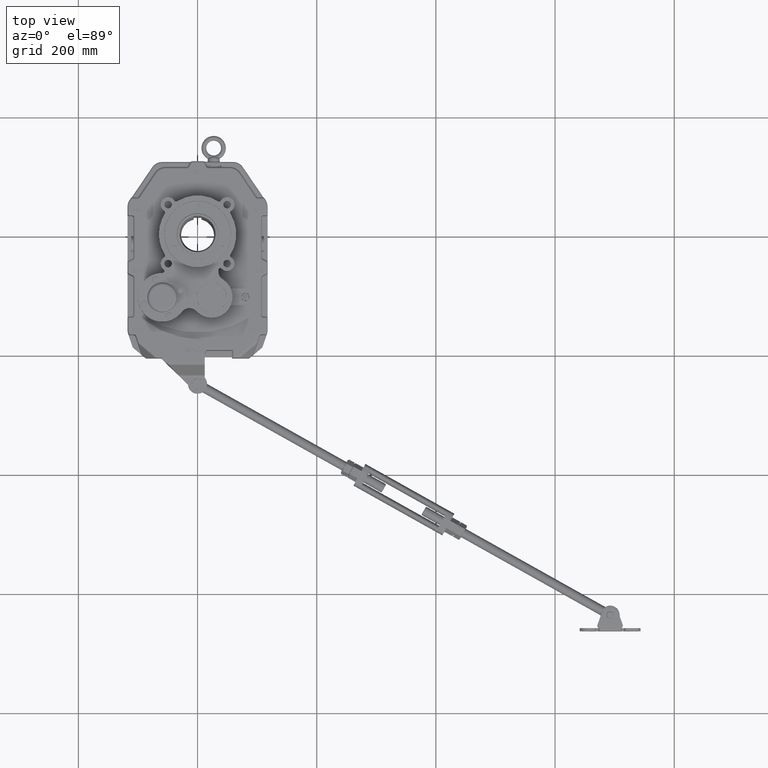
[diagram: clean part render]
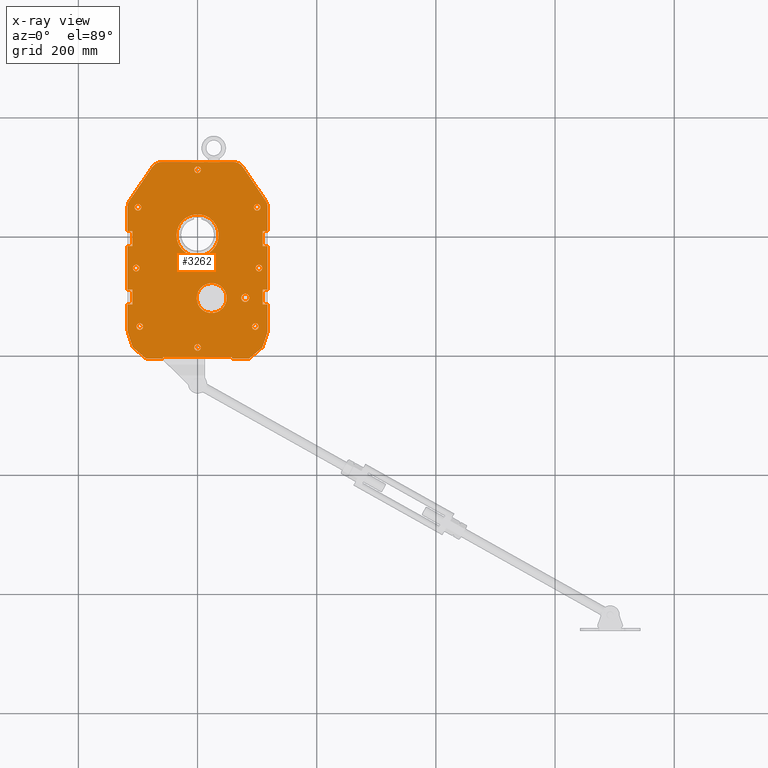
[diagram: x-ray — body ghosted, one internal face saturated and labeled with its STEP entity id]
A machine part, top view, then the same camera in x-ray: the body is ghosted and one INTERNAL B-rep face — a face not visible from any outside direction — is saturated and labeled: STEP entity #3262.
In plain terms, the highlighted planar face has unit normal (0, 0, 1).
Its self-contained STEP definition (entity closure, byte-faithful):
#85 = VERTEX_POINT ( 'NONE', #14130 ) ;
#208 = EDGE_CURVE ( 'NONE', #35110, #85, #19835, .T. ) ;
#230 = VERTEX_POINT ( 'NONE', #41484 ) ;
#306 = EDGE_CURVE ( 'NONE', #17682, #12481, #16428, .T. ) ;
#344 = EDGE_CURVE ( 'NONE', #48751, #44615, #4830, .T. ) ;
#546 = CIRCLE ( 'NONE', #24537, 0.7874015748031497600 ) ;
#599 = LINE ( 'NONE', #621, #12238 ) ;
#614 = CARTESIAN_POINT ( 'NONE',  ( 0.2165354330708662800, 4.330708661417323100, 0.0000000000000000000 ) ) ;
#621 = CARTESIAN_POINT ( 'NONE',  ( -4.625984251968502800, -8.149606299212599900, 0.0000000000000000000 ) ) ;
#667 = VECTOR ( 'NONE', #3163, 39.37007874015748100 ) ;
#693 = AXIS2_PLACEMENT_3D ( 'NONE', #13519, #44122, #17877 ) ;
#736 = ORIENTED_EDGE ( 'NONE', *, *, #344, .T. ) ;
#794 = AXIS2_PLACEMENT_3D ( 'NONE', #20289, #50951, #24674 ) ;
#924 = EDGE_CURVE ( 'NONE', #40233, #38076, #45782, .T. ) ;
#931 = DIRECTION ( 'NONE',  ( 0.0000000000000000000, 0.0000000000000000000, 1.000000000000000000 ) ) ;
#995 = CARTESIAN_POINT ( 'NONE',  ( 6.068796584498686600, -2.012991496086783600, 0.0000000000000000000 ) ) ;
#1096 = ORIENTED_EDGE ( 'NONE', *, *, #45262, .F. ) ;
#1122 = DIRECTION ( 'NONE',  ( -0.0000000000000000000, 0.0000000000000000000, -1.000000000000000000 ) ) ;
#1139 = AXIS2_PLACEMENT_3D ( 'NONE', #6200, #36727, #10562 ) ;
#1213 = EDGE_CURVE ( 'NONE', #85, #35110, #36135, .T. ) ;
#1255 = FACE_BOUND ( 'NONE', #49143, .T. ) ;
#1299 = ORIENTED_EDGE ( 'NONE', *, *, #5046, .T. ) ;
#1361 = VERTEX_POINT ( 'NONE', #53250 ) ;
#1406 = AXIS2_PLACEMENT_3D ( 'NONE', #22901, #53604, #27276 ) ;
#1446 = ORIENTED_EDGE ( 'NONE', *, *, #21809, .F. ) ;
#1514 = CARTESIAN_POINT ( 'NONE',  ( -4.625984251968502800, -8.149606299212599900, 0.0000000000000000000 ) ) ;
#1530 = CARTESIAN_POINT ( 'NONE',  ( 4.625984251968504600, -8.149606299212596400, 0.0000000000000000000 ) ) ;
#1661 = EDGE_CURVE ( 'NONE', #32779, #53252, #21619, .T. ) ;
#1713 = DIRECTION ( 'NONE',  ( 0.0000000000000000000, 1.000000000000000000, 0.0000000000000000000 ) ) ;
#1950 = ORIENTED_EDGE ( 'NONE', *, *, #49534, .T. ) ;
#2354 = ORIENTED_EDGE ( 'NONE', *, *, #208, .T. ) ;
#2535 = ORIENTED_EDGE ( 'NONE', *, *, #27992, .F. ) ;
#2628 = FACE_BOUND ( 'NONE', #31964, .T. ) ;
#2639 = CIRCLE ( 'NONE', #31631, 0.7874015748031497600 ) ;
#2767 = VERTEX_POINT ( 'NONE', #24731 ) ;
#2927 = CARTESIAN_POINT ( 'NONE',  ( 3.937007874015749000, 1.850393700787402700, 0.0000000000000000000 ) ) ;
#3037 = DIRECTION ( 'NONE',  ( 0.0000000000000000000, 0.0000000000000000000, 1.000000000000000000 ) ) ;
#3043 = LINE ( 'NONE', #3963, #22097 ) ;
#3110 = ORIENTED_EDGE ( 'NONE', *, *, #7087, .T. ) ;
#3122 = CARTESIAN_POINT ( 'NONE',  ( -4.311023622047242700, -4.566929133858268500, 0.0000000000000000000 ) ) ;
#3145 = VECTOR ( 'NONE', #41694, 39.37007874015748100 ) ;
#3163 = DIRECTION ( 'NONE',  ( 1.000000000000000000, 2.362176648138631400E-016, -0.0000000000000000000 ) ) ;
#3262 = ADVANCED_FACE ( 'NONE', ( #5383, #12893, #47770, #2628, #36119, #1255, #46370, #34734, #23042, #11523, #56665, #45015 ), #6614, .F. ) ;
#3523 = EDGE_CURVE ( 'NONE', #43847, #26045, #599, .T. ) ;
#3580 = CIRCLE ( 'NONE', #20471, 1.387795275590551400 ) ;
#3642 = EDGE_CURVE ( 'NONE', #7768, #36022, #2639, .T. ) ;
#3700 = VECTOR ( 'NONE', #21824, 39.37007874015748100 ) ;
#3909 = ORIENTED_EDGE ( 'NONE', *, *, #1213, .T. ) ;
#3963 = CARTESIAN_POINT ( 'NONE',  ( 0.0000000000000000000, -0.7086614173228356100, 0.0000000000000000000 ) ) ;
#3978 = CARTESIAN_POINT ( 'NONE',  ( 4.625984251968504600, -8.149606299212596400, 0.0000000000000000000 ) ) ;
#4270 = VERTEX_POINT ( 'NONE', #39543 ) ;
#4549 = ORIENTED_EDGE ( 'NONE', *, *, #26051, .T. ) ;
#4665 = CARTESIAN_POINT ( 'NONE',  ( -3.396456692913386400, -8.149606299212596400, 0.0000000000000000000 ) ) ;
#4754 = CARTESIAN_POINT ( 'NONE',  ( 4.625984251968502800, -0.7086614173228356100, 0.0000000000000000000 ) ) ;
#4764 = VECTOR ( 'NONE', #54716, 39.37007874015748100 ) ;
#4830 = CIRCLE ( 'NONE', #29207, 0.2165354330708663400 ) ;
#4845 = CARTESIAN_POINT ( 'NONE',  ( 2.339828238322097000, 4.055118110236220400, 0.0000000000000000000 ) ) ;
#5046 = EDGE_CURVE ( 'NONE', #7508, #50380, #5117, .T. ) ;
#5117 = LINE ( 'NONE', #46473, #33049 ) ;
#5207 = VERTEX_POINT ( 'NONE', #54405 ) ;
#5318 = CARTESIAN_POINT ( 'NONE',  ( -0.2165354330708662000, -7.409448818897637100, 0.0000000000000000000 ) ) ;
#5383 = FACE_OUTER_BOUND ( 'NONE', #51121, .T. ) ;
#5407 = DIRECTION ( 'NONE',  ( 0.3148281856745032100, 0.9491486782927637300, 0.0000000000000000000 ) ) ;
#5518 = VECTOR ( 'NONE', #10306, 39.37007874015748100 ) ;
#5731 = ORIENTED_EDGE ( 'NONE', *, *, #39816, .F. ) ;
#5794 = DIRECTION ( 'NONE',  ( -0.0000000000000000000, 0.0000000000000000000, -1.000000000000000000 ) ) ;
#5800 = VERTEX_POINT ( 'NONE', #28983 ) ;
#5806 = DIRECTION ( 'NONE',  ( 0.0000000000000000000, -0.0000000000000000000, 1.000000000000000000 ) ) ;
#5860 = EDGE_LOOP ( 'NONE', ( #48581, #28746 ) ) ;
#5883 = VECTOR ( 'NONE', #54764, 39.37007874015748100 ) ;
#6200 = CARTESIAN_POINT ( 'NONE',  ( 3.818897637795276800, -6.031496062992124200, 0.0000000000000000000 ) ) ;
#6203 = EDGE_CURVE ( 'NONE', #230, #11089, #51673, .T. ) ;
#6526 = CARTESIAN_POINT ( 'NONE',  ( 3.818897637795276800, -6.031496062992124200, 0.0000000000000000000 ) ) ;
#6556 = CIRCLE ( 'NONE', #19459, 0.2657480314960632400 ) ;
#6614 = PLANE ( 'NONE',  #51512 ) ;
#6685 = ORIENTED_EDGE ( 'NONE', *, *, #49904, .F. ) ;
#6754 = AXIS2_PLACEMENT_3D ( 'NONE', #31876, #5806, #36350 ) ;
#6854 = CARTESIAN_POINT ( 'NONE',  ( 4.625984251968504600, 4.842519685039370400, 0.0000000000000000000 ) ) ;
#7024 = VECTOR ( 'NONE', #26134, 39.37007874015748100 ) ;
#7087 = EDGE_CURVE ( 'NONE', #44615, #48751, #23392, .T. ) ;
#7324 = AXIS2_PLACEMENT_3D ( 'NONE', #51937, #25647, #56331 ) ;
#7331 = DIRECTION ( 'NONE',  ( 1.000000000000000000, 0.0000000000000000000, 0.0000000000000000000 ) ) ;
#7508 = VERTEX_POINT ( 'NONE', #44737 ) ;
#7532 = ORIENTED_EDGE ( 'NONE', *, *, #14308, .F. ) ;
#7568 = ORIENTED_EDGE ( 'NONE', *, *, #25683, .T. ) ;
#7705 = EDGE_CURVE ( 'NONE', #20401, #21387, #13213, .T. ) ;
#7737 = CARTESIAN_POINT ( 'NONE',  ( 3.720472440944882400, 1.850393700787402700, 0.0000000000000000000 ) ) ;
#7768 = VERTEX_POINT ( 'NONE', #8249 ) ;
#7789 = EDGE_CURVE ( 'NONE', #21283, #32116, #38488, .T. ) ;
#7842 = CARTESIAN_POINT ( 'NONE',  ( 0.2165354330708663400, -7.409448818897637100, 0.0000000000000000000 ) ) ;
#7998 = CARTESIAN_POINT ( 'NONE',  ( 4.625984251968504600, 1.845104029052865100, 0.0000000000000000000 ) ) ;
#8021 = DIRECTION ( 'NONE',  ( 0.0000000000000000000, 0.0000000000000000000, 1.000000000000000000 ) ) ;
#8065 = DIRECTION ( 'NONE',  ( -1.000000000000000000, 0.0000000000000000000, 0.0000000000000000000 ) ) ;
#8249 = CARTESIAN_POINT ( 'NONE',  ( -4.625984251968502800, 1.845104029052865100, 0.0000000000000000000 ) ) ;
#8297 = DIRECTION ( 'NONE',  ( 0.0000000000000000000, 0.0000000000000000000, 1.000000000000000000 ) ) ;
#8352 = DIRECTION ( 'NONE',  ( -1.000000000000000000, 0.0000000000000000000, 0.0000000000000000000 ) ) ;
#8393 = CIRCLE ( 'NONE', #30089, 0.7874015748031497600 ) ;
#8433 = DIRECTION ( 'NONE',  ( 0.0000000000000000000, -0.0000000000000000000, 1.000000000000000000 ) ) ;
#8568 = DIRECTION ( 'NONE',  ( -0.0000000000000000000, 0.0000000000000000000, -1.000000000000000000 ) ) ;
#8806 = CIRCLE ( 'NONE', #40358, 1.387795275590551400 ) ;
#8947 = DIRECTION ( 'NONE',  ( -0.0000000000000000000, -1.000000000000000000, -0.0000000000000000000 ) ) ;
#8975 = ORIENTED_EDGE ( 'NONE', *, *, #10058, .T. ) ;
#9013 = CARTESIAN_POINT ( 'NONE',  ( -4.271653543307085200, -2.165354330708661600, 0.0000000000000000000 ) ) ;
#9060 = DIRECTION ( 'NONE',  ( -0.0000000000000000000, -1.000000000000000000, -0.0000000000000000000 ) ) ;
#9080 = ORIENTED_EDGE ( 'NONE', *, *, #53341, .T. ) ;
#9256 = DIRECTION ( 'NONE',  ( 1.000000000000000000, 2.081668171172168100E-015, 0.0000000000000000000 ) ) ;
#10058 = EDGE_CURVE ( 'NONE', #17893, #36254, #17516, .T. ) ;
#10071 = VECTOR ( 'NONE', #37344, 39.37007874015748100 ) ;
#10306 = DIRECTION ( 'NONE',  ( -0.0000000000000000000, -1.000000000000000000, -0.0000000000000000000 ) ) ;
#10357 = CARTESIAN_POINT ( 'NONE',  ( -4.490261408984160600, 2.287049806832798900, 0.0000000000000000000 ) ) ;
#10358 = CARTESIAN_POINT ( 'NONE',  ( 1.387795275590551400, 0.0000000000000000000, 0.0000000000000000000 ) ) ;
#10367 = CARTESIAN_POINT ( 'NONE',  ( -3.937007874015747700, 1.850393700787401600, 0.0000000000000000000 ) ) ;
#10450 = ORIENTED_EDGE ( 'NONE', *, *, #3523, .F. ) ;
#10459 = EDGE_CURVE ( 'NONE', #5207, #21283, #42842, .T. ) ;
#10562 = DIRECTION ( 'NONE',  ( 1.000000000000000000, 0.0000000000000000000, 0.0000000000000000000 ) ) ;
#10744 = EDGE_LOOP ( 'NONE', ( #42820, #30639 ) ) ;
#10891 = DIRECTION ( 'NONE',  ( 1.000000000000000000, 0.0000000000000000000, 0.0000000000000000000 ) ) ;
#10894 = AXIS2_PLACEMENT_3D ( 'NONE', #34567, #8433, #38990 ) ;
#10931 = ORIENTED_EDGE ( 'NONE', *, *, #32645, .T. ) ;
#10967 = AXIS2_PLACEMENT_3D ( 'NONE', #29133, #3037, #33533 ) ;
#10994 = DIRECTION ( 'NONE',  ( 1.000000000000000000, 0.0000000000000000000, -0.0000000000000000000 ) ) ;
#11089 = VERTEX_POINT ( 'NONE', #47743 ) ;
#11090 = EDGE_LOOP ( 'NONE', ( #51256, #26931 ) ) ;
#11242 = DIRECTION ( 'NONE',  ( -1.000000000000000000, -5.905441620346578500E-017, 0.0000000000000000000 ) ) ;
#11523 = FACE_BOUND ( 'NONE', #55638, .T. ) ;
#11785 = EDGE_CURVE ( 'NONE', #13821, #35107, #27394, .T. ) ;
#11920 = AXIS2_PLACEMENT_3D ( 'NONE', #27205, #1122, #31618 ) ;
#11967 = VERTEX_POINT ( 'NONE', #54730 ) ;
#12001 = VERTEX_POINT ( 'NONE', #15667 ) ;
#12238 = VECTOR ( 'NONE', #9060, 39.37007874015748100 ) ;
#12304 = EDGE_CURVE ( 'NONE', #4270, #55183, #36264, .T. ) ;
#12347 = ORIENTED_EDGE ( 'NONE', *, *, #924, .F. ) ;
#12383 = ORIENTED_EDGE ( 'NONE', *, *, #306, .T. ) ;
#12384 = DIRECTION ( 'NONE',  ( 0.0000000000000000000, -1.000000000000000000, 0.0000000000000000000 ) ) ;
#12481 = VERTEX_POINT ( 'NONE', #19231 ) ;
#12893 = FACE_BOUND ( 'NONE', #38181, .T. ) ;
#13213 = LINE ( 'NONE', #42891, #35062 ) ;
#13238 = EDGE_CURVE ( 'NONE', #45975, #36022, #51284, .T. ) ;
#13314 = DIRECTION ( 'NONE',  ( -0.3148281856745032100, 0.9491486782927637300, 0.0000000000000000000 ) ) ;
#13421 = ORIENTED_EDGE ( 'NONE', *, *, #24351, .T. ) ;
#13506 = ORIENTED_EDGE ( 'NONE', *, *, #19714, .T. ) ;
#13519 = CARTESIAN_POINT ( 'NONE',  ( 4.055118110236221300, -2.165354330708660700, 0.0000000000000000000 ) ) ;
#13752 = LINE ( 'NONE', #1530, #41157 ) ;
#13821 = VERTEX_POINT ( 'NONE', #9013 ) ;
#13824 = ORIENTED_EDGE ( 'NONE', *, *, #55621, .T. ) ;
#13910 = CARTESIAN_POINT ( 'NONE',  ( 4.625984251968502800, 0.2755905511811015400, 0.0000000000000000000 ) ) ;
#14048 = ORIENTED_EDGE ( 'NONE', *, *, #6203, .T. ) ;
#14122 = CARTESIAN_POINT ( 'NONE',  ( 3.415354330708662500, -4.133858267716535200, 0.0000000000000000000 ) ) ;
#14130 = CARTESIAN_POINT ( 'NONE',  ( 4.035433070866143400, -6.031496062992124200, 0.0000000000000000000 ) ) ;
#14308 = EDGE_CURVE ( 'NONE', #11967, #21197, #43543, .T. ) ;
#14321 = CARTESIAN_POINT ( 'NONE',  ( -4.035433070866140800, -6.031496062992125000, 0.0000000000000000000 ) ) ;
#14735 = DIRECTION ( 'NONE',  ( 1.000000000000000000, 0.0000000000000000000, 0.0000000000000000000 ) ) ;
#14884 = AXIS2_PLACEMENT_3D ( 'NONE', #22345, #53048, #26730 ) ;
#15154 = DIRECTION ( 'NONE',  ( 0.0000000000000000000, -0.0000000000000000000, 1.000000000000000000 ) ) ;
#15194 = CIRCLE ( 'NONE', #14884, 0.2165354330708663400 ) ;
#15667 = CARTESIAN_POINT ( 'NONE',  ( -2.283464566929136500, -8.039370078740155600, 0.0000000000000000000 ) ) ;
#15796 = CARTESIAN_POINT ( 'NONE',  ( -2.339828238322095200, 4.055118110236219500, 0.0000000000000000000 ) ) ;
#15813 = LINE ( 'NONE', #26235, #37711 ) ;
#16050 = CARTESIAN_POINT ( 'NONE',  ( -4.625984251968502800, 0.2755905511811015400, 0.0000000000000000000 ) ) ;
#16305 = DIRECTION ( 'NONE',  ( -1.000000000000000000, -0.0000000000000000000, -0.0000000000000000000 ) ) ;
#16428 = CIRCLE ( 'NONE', #23291, 0.2657480314960632400 ) ;
#16777 = AXIS2_PLACEMENT_3D ( 'NONE', #4845, #35405, #9256 ) ;
#17045 = CARTESIAN_POINT ( 'NONE',  ( 3.838582677165355100, -6.235621705654092600, 0.0000000000000000000 ) ) ;
#17052 = DIRECTION ( 'NONE',  ( -0.7661058198694291600, -0.6427144566307729800, -0.0000000000000000000 ) ) ;
#17255 = CARTESIAN_POINT ( 'NONE',  ( -0.2165354330708661500, 4.330708661417323100, 0.0000000000000000000 ) ) ;
#17465 = VERTEX_POINT ( 'NONE', #18152 ) ;
#17516 = LINE ( 'NONE', #43298, #27711 ) ;
#17682 = VERTEX_POINT ( 'NONE', #14122 ) ;
#17877 = DIRECTION ( 'NONE',  ( 1.000000000000000000, 0.0000000000000000000, 0.0000000000000000000 ) ) ;
#17893 = VERTEX_POINT ( 'NONE', #41665 ) ;
#17960 = ORIENTED_EDGE ( 'NONE', *, *, #32178, .T. ) ;
#17982 = CIRCLE ( 'NONE', #22880, 0.2165354330708662800 ) ;
#18152 = CARTESIAN_POINT ( 'NONE',  ( -4.311023622047242700, -3.582677165354331900, 0.0000000000000000000 ) ) ;
#18171 = ORIENTED_EDGE ( 'NONE', *, *, #34266, .T. ) ;
#18369 = CIRCLE ( 'NONE', #16777, 0.7874015748031497600 ) ;
#18439 = DIRECTION ( 'NONE',  ( -0.0000000000000000000, -1.000000000000000000, -0.0000000000000000000 ) ) ;
#18532 = DIRECTION ( 'NONE',  ( 0.0000000000000000000, -0.0000000000000000000, 1.000000000000000000 ) ) ;
#18885 = DIRECTION ( 'NONE',  ( 1.000000000000000000, 0.0000000000000000000, 0.0000000000000000000 ) ) ;
#18939 = EDGE_CURVE ( 'NONE', #33413, #49316, #26840, .T. ) ;
#19054 = DIRECTION ( 'NONE',  ( 0.0000000000000000000, 0.0000000000000000000, 1.000000000000000000 ) ) ;
#19070 = ORIENTED_EDGE ( 'NONE', *, *, #11785, .T. ) ;
#19075 = VECTOR ( 'NONE', #16305, 39.37007874015748100 ) ;
#19145 = VERTEX_POINT ( 'NONE', #24980 ) ;
#19231 = CARTESIAN_POINT ( 'NONE',  ( 2.883858267716536100, -4.133858267716535200, 0.0000000000000000000 ) ) ;
#19353 = ORIENTED_EDGE ( 'NONE', *, *, #33491, .T. ) ;
#19452 = VECTOR ( 'NONE', #47427, 39.37007874015748100 ) ;
#19459 = AXIS2_PLACEMENT_3D ( 'NONE', #34440, #8297, #38864 ) ;
#19621 = EDGE_CURVE ( 'NONE', #23622, #1361, #45637, .T. ) ;
#19694 = CARTESIAN_POINT ( 'NONE',  ( -4.278856893997201800, -7.409328192635716600, 0.0000000000000000000 ) ) ;
#19714 = EDGE_CURVE ( 'NONE', #30409, #21387, #50428, .T. ) ;
#19725 = DIRECTION ( 'NONE',  ( 0.0000000000000000000, -0.0000000000000000000, 1.000000000000000000 ) ) ;
#19835 = CIRCLE ( 'NONE', #39161, 0.2165354330708663400 ) ;
#19840 = ORIENTED_EDGE ( 'NONE', *, *, #3642, .T. ) ;
#19956 = DIRECTION ( 'NONE',  ( -1.000000000000000000, 0.0000000000000000000, 0.0000000000000000000 ) ) ;
#20046 = DIRECTION ( 'NONE',  ( 0.0000000000000000000, 1.000000000000000000, 0.0000000000000000000 ) ) ;
#20146 = DIRECTION ( 'NONE',  ( 1.000000000000000000, -2.081668171172168100E-015, 0.0000000000000000000 ) ) ;
#20289 = CARTESIAN_POINT ( 'NONE',  ( 6.829619984160658000E-017, 4.330708661417323100, 0.0000000000000000000 ) ) ;
#20348 = EDGE_CURVE ( 'NONE', #19145, #39126, #40731, .T. ) ;
#20401 = VERTEX_POINT ( 'NONE', #54947 ) ;
#20431 = VERTEX_POINT ( 'NONE', #3122 ) ;
#20471 = AXIS2_PLACEMENT_3D ( 'NONE', #45294, #19054, #49695 ) ;
#20529 = CARTESIAN_POINT ( 'NONE',  ( 6.829619984160658000E-017, 4.330708661417323100, 0.0000000000000000000 ) ) ;
#20771 = VECTOR ( 'NONE', #13314, 39.37007874015748900 ) ;
#20835 = ORIENTED_EDGE ( 'NONE', *, *, #27505, .T. ) ;
#21137 = DIRECTION ( 'NONE',  ( 0.0000000000000000000, -0.0000000000000000000, 1.000000000000000000 ) ) ;
#21197 = VERTEX_POINT ( 'NONE', #48336 ) ;
#21283 = VERTEX_POINT ( 'NONE', #13910 ) ;
#21387 = VERTEX_POINT ( 'NONE', #36470 ) ;
#21417 = DIRECTION ( 'NONE',  ( 1.000000000000000000, 0.0000000000000000000, 0.0000000000000000000 ) ) ;
#21619 = CIRCLE ( 'NONE', #794, 0.2165354330708662000 ) ;
#21634 = VERTEX_POINT ( 'NONE', #42411 ) ;
#21809 = EDGE_CURVE ( 'NONE', #30409, #19145, #37171, .T. ) ;
#21824 = DIRECTION ( 'NONE',  ( 1.000000000000000000, 0.0000000000000000000, 0.0000000000000000000 ) ) ;
#22097 = VECTOR ( 'NONE', #8352, 39.37007874015748100 ) ;
#22274 = CARTESIAN_POINT ( 'NONE',  ( 4.625984251968504600, -8.149606299212596400, 0.0000000000000000000 ) ) ;
#22345 = CARTESIAN_POINT ( 'NONE',  ( -4.055118110236219500, -2.165354330708661600, 0.0000000000000000000 ) ) ;
#22664 = DIRECTION ( 'NONE',  ( 0.0000000000000000000, 0.0000000000000000000, 1.000000000000000000 ) ) ;
#22880 = AXIS2_PLACEMENT_3D ( 'NONE', #45954, #19725, #50352 ) ;
#22901 = CARTESIAN_POINT ( 'NONE',  ( -4.055118110236219500, -2.165354330708661600, 0.0000000000000000000 ) ) ;
#22957 = ORIENTED_EDGE ( 'NONE', *, *, #36994, .F. ) ;
#23042 = FACE_BOUND ( 'NONE', #32218, .T. ) ;
#23291 = AXIS2_PLACEMENT_3D ( 'NONE', #34148, #8021, #38571 ) ;
#23323 = VERTEX_POINT ( 'NONE', #47710 ) ;
#23392 = CIRCLE ( 'NONE', #36310, 0.2165354330708663400 ) ;
#23416 = AXIS2_PLACEMENT_3D ( 'NONE', #34697, #8568, #39125 ) ;
#23622 = VERTEX_POINT ( 'NONE', #37140 ) ;
#23648 = VERTEX_POINT ( 'NONE', #19694 ) ;
#23747 = CARTESIAN_POINT ( 'NONE',  ( -2.991506970140903800, 4.497063888016153800, 0.0000000000000000000 ) ) ;
#23748 = CIRCLE ( 'NONE', #10894, 0.2165354330708663400 ) ;
#24198 = ORIENTED_EDGE ( 'NONE', *, *, #45847, .T. ) ;
#24220 = CARTESIAN_POINT ( 'NONE',  ( 4.311023622047242700, -3.582677165354331900, 0.0000000000000000000 ) ) ;
#24351 = EDGE_CURVE ( 'NONE', #53846, #38764, #23748, .T. ) ;
#24406 = LINE ( 'NONE', #3978, #46356 ) ;
#24537 = AXIS2_PLACEMENT_3D ( 'NONE', #15796, #46385, #20146 ) ;
#24674 = DIRECTION ( 'NONE',  ( 1.000000000000000000, 0.0000000000000000000, 0.0000000000000000000 ) ) ;
#24731 = CARTESIAN_POINT ( 'NONE',  ( -2.339828238322093000, 4.842519685039369500, 0.0000000000000000000 ) ) ;
#24798 = EDGE_CURVE ( 'NONE', #53252, #32779, #44973, .T. ) ;
#24799 = LINE ( 'NONE', #40988, #35103 ) ;
#24909 = DIRECTION ( 'NONE',  ( 1.000000000000000000, 0.0000000000000000000, 0.0000000000000000000 ) ) ;
#24980 = CARTESIAN_POINT ( 'NONE',  ( 4.625984251968502800, -3.582677165354331900, 0.0000000000000000000 ) ) ;
#25104 = CARTESIAN_POINT ( 'NONE',  ( 3.602362204724410600, -6.031496062992124200, 0.0000000000000000000 ) ) ;
#25493 = CARTESIAN_POINT ( 'NONE',  ( 4.055118110236221300, -2.165354330708660700, 0.0000000000000000000 ) ) ;
#25647 = DIRECTION ( 'NONE',  ( 0.0000000000000000000, -0.0000000000000000000, 1.000000000000000000 ) ) ;
#25683 = EDGE_CURVE ( 'NONE', #12481, #17682, #6556, .T. ) ;
#25990 = DIRECTION ( 'NONE',  ( -0.5612711377805154100, -0.8276319894098860300, 0.0000000000000000000 ) ) ;
#26045 = VERTEX_POINT ( 'NONE', #37090 ) ;
#26051 = EDGE_CURVE ( 'NONE', #5207, #21634, #26308, .T. ) ;
#26134 = DIRECTION ( 'NONE',  ( -0.7661058198694291600, 0.6427144566307729800, 0.0000000000000000000 ) ) ;
#26235 = CARTESIAN_POINT ( 'NONE',  ( -4.625984251968502800, -8.149606299212599900, 0.0000000000000000000 ) ) ;
#26308 = LINE ( 'NONE', #32803, #3145 ) ;
#26730 = DIRECTION ( 'NONE',  ( 1.000000000000000000, 0.0000000000000000000, 0.0000000000000000000 ) ) ;
#26840 = CIRCLE ( 'NONE', #54531, 0.2165354330708663400 ) ;
#26868 = EDGE_CURVE ( 'NONE', #39126, #21634, #3043, .T. ) ;
#26931 = ORIENTED_EDGE ( 'NONE', *, *, #51020, .T. ) ;
#27012 = CARTESIAN_POINT ( 'NONE',  ( 0.9299212598425203900, -4.149055118110236000, 0.0000000000000000000 ) ) ;
#27205 = CARTESIAN_POINT ( 'NONE',  ( 3.838582677165355100, 1.845104029052865100, 0.0000000000000000000 ) ) ;
#27276 = DIRECTION ( 'NONE',  ( 1.000000000000000000, 0.0000000000000000000, 0.0000000000000000000 ) ) ;
#27394 = CIRCLE ( 'NONE', #1406, 0.2165354330708663400 ) ;
#27418 = LINE ( 'NONE', #52445, #7024 ) ;
#27505 = EDGE_CURVE ( 'NONE', #17465, #55183, #46666, .T. ) ;
#27604 = ORIENTED_EDGE ( 'NONE', *, *, #7789, .F. ) ;
#27711 = VECTOR ( 'NONE', #17052, 39.37007874015748100 ) ;
#27916 = VECTOR ( 'NONE', #25990, 39.37007874015748100 ) ;
#27917 = LINE ( 'NONE', #41508, #4764 ) ;
#27984 = CARTESIAN_POINT ( 'NONE',  ( 4.153543307086615700, 1.850393700787402700, 0.0000000000000000000 ) ) ;
#27992 = EDGE_CURVE ( 'NONE', #17465, #20431, #44947, .T. ) ;
#28151 = VECTOR ( 'NONE', #44156, 39.37007874015748100 ) ;
#28168 = AXIS2_PLACEMENT_3D ( 'NONE', #44788, #18532, #49173 ) ;
#28291 = CARTESIAN_POINT ( 'NONE',  ( 0.0000000000000000000, 0.0000000000000000000, 0.0000000000000000000 ) ) ;
#28332 = VECTOR ( 'NONE', #18885, 39.37007874015748100 ) ;
#28746 = ORIENTED_EDGE ( 'NONE', *, *, #24798, .T. ) ;
#28983 = CARTESIAN_POINT ( 'NONE',  ( 2.339828238322097400, 4.842519685039370400, 0.0000000000000000000 ) ) ;
#29133 = CARTESIAN_POINT ( 'NONE',  ( 0.9299212598425203900, -4.149055118110236000, 0.0000000000000000000 ) ) ;
#29207 = AXIS2_PLACEMENT_3D ( 'NONE', #47359, #21137, #51794 ) ;
#29232 = EDGE_CURVE ( 'NONE', #23648, #36339, #32362, .T. ) ;
#29644 = CARTESIAN_POINT ( 'NONE',  ( 0.0000000000000000000, -0.7086614173228356100, 0.0000000000000000000 ) ) ;
#29924 = DIRECTION ( 'NONE',  ( 1.000000000000000000, 0.0000000000000000000, 0.0000000000000000000 ) ) ;
#30089 = AXIS2_PLACEMENT_3D ( 'NONE', #17045, #47655, #21417 ) ;
#30409 = VERTEX_POINT ( 'NONE', #24220 ) ;
#30632 = CARTESIAN_POINT ( 'NONE',  ( 4.490261408984162400, 2.287049806832798000, 0.0000000000000000000 ) ) ;
#30639 = ORIENTED_EDGE ( 'NONE', *, *, #43653, .T. ) ;
#30723 = CARTESIAN_POINT ( 'NONE',  ( 4.625984251968504600, -6.235621705654092600, 0.0000000000000000000 ) ) ;
#30764 = CIRCLE ( 'NONE', #28168, 0.2165354330708663400 ) ;
#31447 = DIRECTION ( 'NONE',  ( 1.000000000000000000, 0.0000000000000000000, 0.0000000000000000000 ) ) ;
#31618 = DIRECTION ( 'NONE',  ( 1.000000000000000000, 0.0000000000000000000, 0.0000000000000000000 ) ) ;
#31631 = AXIS2_PLACEMENT_3D ( 'NONE', #31862, #5794, #36338 ) ;
#31840 = VERTEX_POINT ( 'NONE', #30723 ) ;
#31862 = CARTESIAN_POINT ( 'NONE',  ( -3.838582677165352800, 1.845104029052865300, 0.0000000000000000000 ) ) ;
#31876 = CARTESIAN_POINT ( 'NONE',  ( 6.829619984160658000E-017, -7.409448818897637100, 0.0000000000000000000 ) ) ;
#31916 = EDGE_CURVE ( 'NONE', #43158, #40426, #8806, .T. ) ;
#31964 = EDGE_LOOP ( 'NONE', ( #736, #3110 ) ) ;
#31972 = LINE ( 'NONE', #29644, #56710 ) ;
#32003 = EDGE_CURVE ( 'NONE', #45975, #2767, #546, .T. ) ;
#32047 = CARTESIAN_POINT ( 'NONE',  ( -1.387795275590551400, 1.699559042123787700E-016, 0.0000000000000000000 ) ) ;
#32116 = VERTEX_POINT ( 'NONE', #7998 ) ;
#32178 = EDGE_CURVE ( 'NONE', #36339, #26045, #38534, .T. ) ;
#32181 = ORIENTED_EDGE ( 'NONE', *, *, #29232, .T. ) ;
#32218 = EDGE_LOOP ( 'NONE', ( #9080, #19070 ) ) ;
#32362 = LINE ( 'NONE', #35072, #20771 ) ;
#32645 = EDGE_CURVE ( 'NONE', #31840, #23323, #8393, .T. ) ;
#32779 = VERTEX_POINT ( 'NONE', #614 ) ;
#32803 = CARTESIAN_POINT ( 'NONE',  ( 4.311023622047242700, 0.0000000000000000000, 0.0000000000000000000 ) ) ;
#32937 = CARTESIAN_POINT ( 'NONE',  ( 0.0000000000000000000, -3.582677165354331900, 0.0000000000000000000 ) ) ;
#33049 = VECTOR ( 'NONE', #20046, 39.37007874015748100 ) ;
#33413 = VERTEX_POINT ( 'NONE', #52966 ) ;
#33424 = DIRECTION ( 'NONE',  ( 0.0000000000000000000, -0.0000000000000000000, 1.000000000000000000 ) ) ;
#33491 = EDGE_CURVE ( 'NONE', #12001, #38076, #47197, .T. ) ;
#33533 = DIRECTION ( 'NONE',  ( 1.000000000000000000, 0.0000000000000000000, 0.0000000000000000000 ) ) ;
#33582 = ORIENTED_EDGE ( 'NONE', *, *, #13238, .F. ) ;
#33677 = CARTESIAN_POINT ( 'NONE',  ( 4.625984251968504600, -8.149606299212596400, 0.0000000000000000000 ) ) ;
#34148 = CARTESIAN_POINT ( 'NONE',  ( 3.149606299212599000, -4.133858267716535200, 0.0000000000000000000 ) ) ;
#34186 = CARTESIAN_POINT ( 'NONE',  ( -4.585943841175402500, -6.483517914846613600, 0.0000000000000000000 ) ) ;
#34266 = EDGE_CURVE ( 'NONE', #4270, #21197, #31972, .T. ) ;
#34347 = CARTESIAN_POINT ( 'NONE',  ( 2.991506970140904700, 4.497063888016153800, 0.0000000000000000000 ) ) ;
#34440 = CARTESIAN_POINT ( 'NONE',  ( 3.149606299212599000, -4.133858267716535200, 0.0000000000000000000 ) ) ;
#34567 = CARTESIAN_POINT ( 'NONE',  ( -3.818897637795274600, -6.031496062992125000, 0.0000000000000000000 ) ) ;
#34697 = CARTESIAN_POINT ( 'NONE',  ( -3.838582677165352800, -6.235621705654092600, 0.0000000000000000000 ) ) ;
#34734 = FACE_BOUND ( 'NONE', #52668, .T. ) ;
#35062 = VECTOR ( 'NONE', #8065, 39.37007874015748100 ) ;
#35072 = CARTESIAN_POINT ( 'NONE',  ( -6.068796584498684900, -2.012991496086782700, 0.0000000000000000000 ) ) ;
#35103 = VECTOR ( 'NONE', #36578, 39.37007874015748100 ) ;
#35107 = VERTEX_POINT ( 'NONE', #51412 ) ;
#35110 = VERTEX_POINT ( 'NONE', #25104 ) ;
#35405 = DIRECTION ( 'NONE',  ( -0.0000000000000000000, 0.0000000000000000000, -1.000000000000000000 ) ) ;
#35558 = VECTOR ( 'NONE', #18439, 39.37007874015748100 ) ;
#35986 = VECTOR ( 'NONE', #44310, 39.37007874015748100 ) ;
#36009 = EDGE_CURVE ( 'NONE', #43847, #20431, #51698, .T. ) ;
#36022 = VERTEX_POINT ( 'NONE', #10357 ) ;
#36119 = FACE_BOUND ( 'NONE', #41396, .T. ) ;
#36135 = CIRCLE ( 'NONE', #1139, 0.2165354330708663400 ) ;
#36254 = VERTEX_POINT ( 'NONE', #42487 ) ;
#36264 = LINE ( 'NONE', #1514, #5518 ) ;
#36310 = AXIS2_PLACEMENT_3D ( 'NONE', #2927, #33424, #7331 ) ;
#36338 = DIRECTION ( 'NONE',  ( 1.000000000000000000, 0.0000000000000000000, 0.0000000000000000000 ) ) ;
#36339 = VERTEX_POINT ( 'NONE', #34186 ) ;
#36342 = CARTESIAN_POINT ( 'NONE',  ( 0.0000000000000000000, -4.566929133858268500, 0.0000000000000000000 ) ) ;
#36350 = DIRECTION ( 'NONE',  ( 1.000000000000000000, 0.0000000000000000000, 0.0000000000000000000 ) ) ;
#36470 = CARTESIAN_POINT ( 'NONE',  ( 4.311023622047242700, -4.566929133858268500, 0.0000000000000000000 ) ) ;
#36578 = DIRECTION ( 'NONE',  ( -1.000000000000000000, 0.0000000000000000000, 0.0000000000000000000 ) ) ;
#36727 = DIRECTION ( 'NONE',  ( 0.0000000000000000000, -0.0000000000000000000, 1.000000000000000000 ) ) ;
#36768 = EDGE_CURVE ( 'NONE', #5800, #2767, #55998, .T. ) ;
#36994 = EDGE_CURVE ( 'NONE', #7508, #36254, #24406, .T. ) ;
#37060 = DIRECTION ( 'NONE',  ( 0.0000000000000000000, -0.0000000000000000000, 1.000000000000000000 ) ) ;
#37090 = CARTESIAN_POINT ( 'NONE',  ( -4.625984251968502800, -6.235621705654092600, 0.0000000000000000000 ) ) ;
#37140 = CARTESIAN_POINT ( 'NONE',  ( 1.918110236220472900, -4.149055118110236000, 0.0000000000000000000 ) ) ;
#37171 = LINE ( 'NONE', #52526, #3700 ) ;
#37344 = DIRECTION ( 'NONE',  ( 0.0000000000000000000, -1.000000000000000000, 0.0000000000000000000 ) ) ;
#37711 = VECTOR ( 'NONE', #8947, 39.37007874015748100 ) ;
#37810 = VECTOR ( 'NONE', #5407, 39.37007874015748900 ) ;
#38076 = VERTEX_POINT ( 'NONE', #53795 ) ;
#38129 = CARTESIAN_POINT ( 'NONE',  ( -4.153543307086613900, 1.850393700787401600, 0.0000000000000000000 ) ) ;
#38181 = EDGE_LOOP ( 'NONE', ( #50378, #56306 ) ) ;
#38466 = ORIENTED_EDGE ( 'NONE', *, *, #55383, .T. ) ;
#38488 = LINE ( 'NONE', #22274, #28151 ) ;
#38492 = DIRECTION ( 'NONE',  ( 1.000000000000000000, 0.0000000000000000000, 0.0000000000000000000 ) ) ;
#38527 = ORIENTED_EDGE ( 'NONE', *, *, #7705, .F. ) ;
#38534 = CIRCLE ( 'NONE', #23416, 0.7874015748031497600 ) ;
#38571 = DIRECTION ( 'NONE',  ( 1.000000000000000000, 0.0000000000000000000, 0.0000000000000000000 ) ) ;
#38764 = VERTEX_POINT ( 'NONE', #41678 ) ;
#38814 = VECTOR ( 'NONE', #12384, 39.37007874015748100 ) ;
#38864 = DIRECTION ( 'NONE',  ( 1.000000000000000000, 0.0000000000000000000, 0.0000000000000000000 ) ) ;
#38937 = ORIENTED_EDGE ( 'NONE', *, *, #26868, .F. ) ;
#38990 = DIRECTION ( 'NONE',  ( 1.000000000000000000, 0.0000000000000000000, 0.0000000000000000000 ) ) ;
#39005 = ORIENTED_EDGE ( 'NONE', *, *, #12304, .F. ) ;
#39007 = LINE ( 'NONE', #42567, #19075 ) ;
#39125 = DIRECTION ( 'NONE',  ( 1.000000000000000000, 0.0000000000000000000, 0.0000000000000000000 ) ) ;
#39126 = VERTEX_POINT ( 'NONE', #4754 ) ;
#39161 = AXIS2_PLACEMENT_3D ( 'NONE', #6526, #37060, #10891 ) ;
#39229 = VERTEX_POINT ( 'NONE', #5318 ) ;
#39276 = CARTESIAN_POINT ( 'NONE',  ( -4.138109486434422600, 2.806321468274132400, 0.0000000000000000000 ) ) ;
#39543 = CARTESIAN_POINT ( 'NONE',  ( -4.625984251968502800, -0.7086614173228356100, 0.0000000000000000000 ) ) ;
#39816 = EDGE_CURVE ( 'NONE', #7768, #40517, #15813, .T. ) ;
#39975 = ORIENTED_EDGE ( 'NONE', *, *, #36768, .F. ) ;
#40233 = VERTEX_POINT ( 'NONE', #4665 ) ;
#40302 = CARTESIAN_POINT ( 'NONE',  ( -2.283464566929136500, -8.149606299212596400, 0.0000000000000000000 ) ) ;
#40358 = AXIS2_PLACEMENT_3D ( 'NONE', #48913, #22664, #53359 ) ;
#40426 = VERTEX_POINT ( 'NONE', #32047 ) ;
#40517 = VERTEX_POINT ( 'NONE', #16050 ) ;
#40555 = ORIENTED_EDGE ( 'NONE', *, *, #54238, .T. ) ;
#40731 = LINE ( 'NONE', #50314, #5883 ) ;
#40833 = CIRCLE ( 'NONE', #49114, 0.9881889763779526700 ) ;
#40954 = DIRECTION ( 'NONE',  ( 0.0000000000000000000, -0.0000000000000000000, 1.000000000000000000 ) ) ;
#40988 = CARTESIAN_POINT ( 'NONE',  ( 0.0000000000000000000, 0.2755905511811015400, 0.0000000000000000000 ) ) ;
#41157 = VECTOR ( 'NONE', #1713, 39.37007874015748100 ) ;
#41254 = CARTESIAN_POINT ( 'NONE',  ( -4.625984251968502800, -4.566929133858268500, 0.0000000000000000000 ) ) ;
#41396 = EDGE_LOOP ( 'NONE', ( #40555, #14048 ) ) ;
#41484 = CARTESIAN_POINT ( 'NONE',  ( 3.838582677165355100, -2.165354330708660700, 0.0000000000000000000 ) ) ;
#41508 = CARTESIAN_POINT ( 'NONE',  ( 4.138109486434423400, 2.806321468274133300, 0.0000000000000000000 ) ) ;
#41530 = EDGE_CURVE ( 'NONE', #50380, #12001, #39007, .T. ) ;
#41665 = CARTESIAN_POINT ( 'NONE',  ( 4.278856893997202700, -7.409328192635714000, 0.0000000000000000000 ) ) ;
#41678 = CARTESIAN_POINT ( 'NONE',  ( -3.602362204724408400, -6.031496062992125000, 0.0000000000000000000 ) ) ;
#41694 = DIRECTION ( 'NONE',  ( 0.0000000000000000000, -1.000000000000000000, 0.0000000000000000000 ) ) ;
#41736 = EDGE_CURVE ( 'NONE', #5800, #48866, #18369, .T. ) ;
#41946 = LINE ( 'NONE', #995, #37810 ) ;
#42411 = CARTESIAN_POINT ( 'NONE',  ( 4.311023622047242700, -0.7086614173228356100, 0.0000000000000000000 ) ) ;
#42487 = CARTESIAN_POINT ( 'NONE',  ( 3.396456692913386400, -8.149606299212596400, 0.0000000000000000000 ) ) ;
#42527 = CARTESIAN_POINT ( 'NONE',  ( -4.625984251968502800, -3.582677165354331900, 0.0000000000000000000 ) ) ;
#42567 = CARTESIAN_POINT ( 'NONE',  ( -2.283464566929136500, -8.039370078740155600, 0.0000000000000000000 ) ) ;
#42820 = ORIENTED_EDGE ( 'NONE', *, *, #19621, .T. ) ;
#42842 = LINE ( 'NONE', #43079, #19452 ) ;
#42891 = CARTESIAN_POINT ( 'NONE',  ( 0.0000000000000000000, -4.566929133858268500, 0.0000000000000000000 ) ) ;
#43025 = CIRCLE ( 'NONE', #6754, 0.2165354330708662800 ) ;
#43079 = CARTESIAN_POINT ( 'NONE',  ( 0.0000000000000000000, 0.2755905511811015400, 0.0000000000000000000 ) ) ;
#43158 = VERTEX_POINT ( 'NONE', #10358 ) ;
#43298 = CARTESIAN_POINT ( 'NONE',  ( 3.396456692913386400, -8.149606299212596400, 0.0000000000000000000 ) ) ;
#43543 = LINE ( 'NONE', #48681, #35986 ) ;
#43653 = EDGE_CURVE ( 'NONE', #1361, #23622, #40833, .T. ) ;
#43847 = VERTEX_POINT ( 'NONE', #41254 ) ;
#44122 = DIRECTION ( 'NONE',  ( 0.0000000000000000000, -0.0000000000000000000, 1.000000000000000000 ) ) ;
#44156 = DIRECTION ( 'NONE',  ( 0.0000000000000000000, 1.000000000000000000, 0.0000000000000000000 ) ) ;
#44241 = ORIENTED_EDGE ( 'NONE', *, *, #36009, .T. ) ;
#44278 = ORIENTED_EDGE ( 'NONE', *, *, #31916, .T. ) ;
#44310 = DIRECTION ( 'NONE',  ( 0.0000000000000000000, -1.000000000000000000, 0.0000000000000000000 ) ) ;
#44432 = ORIENTED_EDGE ( 'NONE', *, *, #10459, .F. ) ;
#44615 = VERTEX_POINT ( 'NONE', #7737 ) ;
#44737 = CARTESIAN_POINT ( 'NONE',  ( 2.283464566929139100, -8.149606299212596400, 0.0000000000000000000 ) ) ;
#44788 = CARTESIAN_POINT ( 'NONE',  ( -3.818897637795274600, -6.031496062992125000, 0.0000000000000000000 ) ) ;
#44886 = EDGE_CURVE ( 'NONE', #11967, #40517, #24799, .T. ) ;
#44947 = LINE ( 'NONE', #45725, #10071 ) ;
#44973 = CIRCLE ( 'NONE', #53787, 0.2165354330708662000 ) ;
#45015 = FACE_BOUND ( 'NONE', #10744, .T. ) ;
#45262 = EDGE_CURVE ( 'NONE', #17893, #23323, #41946, .T. ) ;
#45294 = CARTESIAN_POINT ( 'NONE',  ( 0.0000000000000000000, 0.0000000000000000000, 0.0000000000000000000 ) ) ;
#45452 = EDGE_CURVE ( 'NONE', #48866, #46365, #27917, .T. ) ;
#45637 = CIRCLE ( 'NONE', #10967, 0.9881889763779526700 ) ;
#45725 = CARTESIAN_POINT ( 'NONE',  ( -4.311023622047242700, 0.0000000000000000000, 0.0000000000000000000 ) ) ;
#45782 = LINE ( 'NONE', #33677, #667 ) ;
#45847 = EDGE_CURVE ( 'NONE', #46365, #32116, #49830, .T. ) ;
#45954 = CARTESIAN_POINT ( 'NONE',  ( 6.829619984160658000E-017, -7.409448818897637100, 0.0000000000000000000 ) ) ;
#45975 = VERTEX_POINT ( 'NONE', #23747 ) ;
#46356 = VECTOR ( 'NONE', #47523, 39.37007874015748100 ) ;
#46365 = VERTEX_POINT ( 'NONE', #30632 ) ;
#46370 = FACE_BOUND ( 'NONE', #11090, .T. ) ;
#46385 = DIRECTION ( 'NONE',  ( -0.0000000000000000000, 0.0000000000000000000, -1.000000000000000000 ) ) ;
#46473 = CARTESIAN_POINT ( 'NONE',  ( 2.283464566929139100, -8.149606299212596400, 0.0000000000000000000 ) ) ;
#46517 = AXIS2_PLACEMENT_3D ( 'NONE', #25493, #56189, #29924 ) ;
#46666 = LINE ( 'NONE', #32937, #48055 ) ;
#46753 = ORIENTED_EDGE ( 'NONE', *, *, #41736, .T. ) ;
#47197 = LINE ( 'NONE', #40302, #35558 ) ;
#47359 = CARTESIAN_POINT ( 'NONE',  ( 3.937007874015749000, 1.850393700787402700, 0.0000000000000000000 ) ) ;
#47427 = DIRECTION ( 'NONE',  ( 1.000000000000000000, 0.0000000000000000000, 0.0000000000000000000 ) ) ;
#47523 = DIRECTION ( 'NONE',  ( 1.000000000000000000, 2.362176648138631400E-016, -0.0000000000000000000 ) ) ;
#47655 = DIRECTION ( 'NONE',  ( -0.0000000000000000000, 0.0000000000000000000, -1.000000000000000000 ) ) ;
#47710 = CARTESIAN_POINT ( 'NONE',  ( 4.585943841175405200, -6.483517914846615300, 0.0000000000000000000 ) ) ;
#47743 = CARTESIAN_POINT ( 'NONE',  ( 4.271653543307087900, -2.165354330708660700, 0.0000000000000000000 ) ) ;
#47770 = FACE_BOUND ( 'NONE', #5860, .T. ) ;
#47954 = ORIENTED_EDGE ( 'NONE', *, *, #32003, .T. ) ;
#48055 = VECTOR ( 'NONE', #19956, 39.37007874015748100 ) ;
#48336 = CARTESIAN_POINT ( 'NONE',  ( -4.311023622047242700, -0.7086614173228356100, 0.0000000000000000000 ) ) ;
#48581 = ORIENTED_EDGE ( 'NONE', *, *, #1661, .T. ) ;
#48681 = CARTESIAN_POINT ( 'NONE',  ( -4.311023622047242700, 0.0000000000000000000, 0.0000000000000000000 ) ) ;
#48751 = VERTEX_POINT ( 'NONE', #27984 ) ;
#48816 = VERTEX_POINT ( 'NONE', #7842 ) ;
#48866 = VERTEX_POINT ( 'NONE', #34347 ) ;
#48913 = CARTESIAN_POINT ( 'NONE',  ( 0.0000000000000000000, 0.0000000000000000000, 0.0000000000000000000 ) ) ;
#49114 = AXIS2_PLACEMENT_3D ( 'NONE', #27012, #931, #31447 ) ;
#49143 = EDGE_LOOP ( 'NONE', ( #3909, #2354 ) ) ;
#49173 = DIRECTION ( 'NONE',  ( 1.000000000000000000, 0.0000000000000000000, 0.0000000000000000000 ) ) ;
#49316 = VERTEX_POINT ( 'NONE', #38129 ) ;
#49412 = CARTESIAN_POINT ( 'NONE',  ( 2.283464566929139100, -8.039370078740155600, 0.0000000000000000000 ) ) ;
#49534 = EDGE_CURVE ( 'NONE', #38764, #53846, #30764, .T. ) ;
#49695 = DIRECTION ( 'NONE',  ( 1.000000000000000000, 0.0000000000000000000, 0.0000000000000000000 ) ) ;
#49783 = ORIENTED_EDGE ( 'NONE', *, *, #41530, .T. ) ;
#49830 = CIRCLE ( 'NONE', #11920, 0.7874015748031497600 ) ;
#49904 = EDGE_CURVE ( 'NONE', #31840, #20401, #13752, .T. ) ;
#50314 = CARTESIAN_POINT ( 'NONE',  ( 4.625984251968504600, -8.149606299212596400, 0.0000000000000000000 ) ) ;
#50352 = DIRECTION ( 'NONE',  ( 1.000000000000000000, 0.0000000000000000000, 0.0000000000000000000 ) ) ;
#50378 = ORIENTED_EDGE ( 'NONE', *, *, #18939, .T. ) ;
#50380 = VERTEX_POINT ( 'NONE', #49412 ) ;
#50428 = LINE ( 'NONE', #55977, #38814 ) ;
#50885 = CIRCLE ( 'NONE', #7324, 0.2165354330708663400 ) ;
#50941 = CIRCLE ( 'NONE', #693, 0.2165354330708663400 ) ;
#50951 = DIRECTION ( 'NONE',  ( 0.0000000000000000000, -0.0000000000000000000, 1.000000000000000000 ) ) ;
#51020 = EDGE_CURVE ( 'NONE', #39229, #48816, #43025, .T. ) ;
#51121 = EDGE_LOOP ( 'NONE', ( #56327, #1446, #13506, #38527, #6685, #10931, #1096, #8975, #22957, #1299, #49783, #19353, #12347, #38466, #32181, #17960, #10450, #44241, #2535, #20835, #39005, #18171, #7532, #55236, #5731, #19840, #33582, #47954, #39975, #46753, #52449, #24198, #27604, #44432, #4549, #38937 ) ) ;
#51195 = DIRECTION ( 'NONE',  ( 0.0000000000000000000, -0.0000000000000000000, 1.000000000000000000 ) ) ;
#51256 = ORIENTED_EDGE ( 'NONE', *, *, #52986, .T. ) ;
#51284 = LINE ( 'NONE', #39276, #27916 ) ;
#51412 = CARTESIAN_POINT ( 'NONE',  ( -3.838582677165352800, -2.165354330708661600, 0.0000000000000000000 ) ) ;
#51512 = AXIS2_PLACEMENT_3D ( 'NONE', #28291, #15154, #10994 ) ;
#51673 = CIRCLE ( 'NONE', #46517, 0.2165354330708663400 ) ;
#51698 = LINE ( 'NONE', #36342, #28332 ) ;
#51794 = DIRECTION ( 'NONE',  ( 1.000000000000000000, 0.0000000000000000000, 0.0000000000000000000 ) ) ;
#51937 = CARTESIAN_POINT ( 'NONE',  ( -3.937007874015747700, 1.850393700787401600, 0.0000000000000000000 ) ) ;
#52445 = CARTESIAN_POINT ( 'NONE',  ( -3.396456692913386400, -8.149606299212596400, 0.0000000000000000000 ) ) ;
#52449 = ORIENTED_EDGE ( 'NONE', *, *, #45452, .T. ) ;
#52526 = CARTESIAN_POINT ( 'NONE',  ( 0.0000000000000000000, -3.582677165354331900, 0.0000000000000000000 ) ) ;
#52668 = EDGE_LOOP ( 'NONE', ( #1950, #13421 ) ) ;
#52966 = CARTESIAN_POINT ( 'NONE',  ( -3.720472440944881500, 1.850393700787401600, 0.0000000000000000000 ) ) ;
#52986 = EDGE_CURVE ( 'NONE', #48816, #39229, #17982, .T. ) ;
#53048 = DIRECTION ( 'NONE',  ( 0.0000000000000000000, -0.0000000000000000000, 1.000000000000000000 ) ) ;
#53250 = CARTESIAN_POINT ( 'NONE',  ( -0.05826771653543247300, -4.149055118110236000, 0.0000000000000000000 ) ) ;
#53252 = VERTEX_POINT ( 'NONE', #17255 ) ;
#53341 = EDGE_CURVE ( 'NONE', #35107, #13821, #15194, .T. ) ;
#53359 = DIRECTION ( 'NONE',  ( 1.000000000000000000, 0.0000000000000000000, 0.0000000000000000000 ) ) ;
#53604 = DIRECTION ( 'NONE',  ( 0.0000000000000000000, -0.0000000000000000000, 1.000000000000000000 ) ) ;
#53787 = AXIS2_PLACEMENT_3D ( 'NONE', #20529, #51195, #24909 ) ;
#53795 = CARTESIAN_POINT ( 'NONE',  ( -2.283464566929136500, -8.149606299212596400, 0.0000000000000000000 ) ) ;
#53846 = VERTEX_POINT ( 'NONE', #14321 ) ;
#54238 = EDGE_CURVE ( 'NONE', #11089, #230, #50941, .T. ) ;
#54405 = CARTESIAN_POINT ( 'NONE',  ( 4.311023622047242700, 0.2755905511811015400, 0.0000000000000000000 ) ) ;
#54531 = AXIS2_PLACEMENT_3D ( 'NONE', #10367, #40954, #14735 ) ;
#54641 = VECTOR ( 'NONE', #11242, 39.37007874015748100 ) ;
#54697 = EDGE_CURVE ( 'NONE', #49316, #33413, #50885, .T. ) ;
#54716 = DIRECTION ( 'NONE',  ( 0.5612711377805155200, -0.8276319894098859200, 0.0000000000000000000 ) ) ;
#54730 = CARTESIAN_POINT ( 'NONE',  ( -4.311023622047242700, 0.2755905511811015400, 0.0000000000000000000 ) ) ;
#54764 = DIRECTION ( 'NONE',  ( 0.0000000000000000000, 1.000000000000000000, 0.0000000000000000000 ) ) ;
#54947 = CARTESIAN_POINT ( 'NONE',  ( 4.625984251968502800, -4.566929133858268500, 0.0000000000000000000 ) ) ;
#55180 = EDGE_LOOP ( 'NONE', ( #44278, #13824 ) ) ;
#55183 = VERTEX_POINT ( 'NONE', #42527 ) ;
#55236 = ORIENTED_EDGE ( 'NONE', *, *, #44886, .T. ) ;
#55383 = EDGE_CURVE ( 'NONE', #40233, #23648, #27418, .T. ) ;
#55621 = EDGE_CURVE ( 'NONE', #40426, #43158, #3580, .T. ) ;
#55638 = EDGE_LOOP ( 'NONE', ( #12383, #7568 ) ) ;
#55977 = CARTESIAN_POINT ( 'NONE',  ( 4.311023622047242700, 0.0000000000000000000, 0.0000000000000000000 ) ) ;
#55998 = LINE ( 'NONE', #6854, #54641 ) ;
#56189 = DIRECTION ( 'NONE',  ( 0.0000000000000000000, -0.0000000000000000000, 1.000000000000000000 ) ) ;
#56306 = ORIENTED_EDGE ( 'NONE', *, *, #54697, .T. ) ;
#56327 = ORIENTED_EDGE ( 'NONE', *, *, #20348, .F. ) ;
#56331 = DIRECTION ( 'NONE',  ( 1.000000000000000000, 0.0000000000000000000, 0.0000000000000000000 ) ) ;
#56665 = FACE_BOUND ( 'NONE', #55180, .T. ) ;
#56710 = VECTOR ( 'NONE', #38492, 39.37007874015748100 ) ;